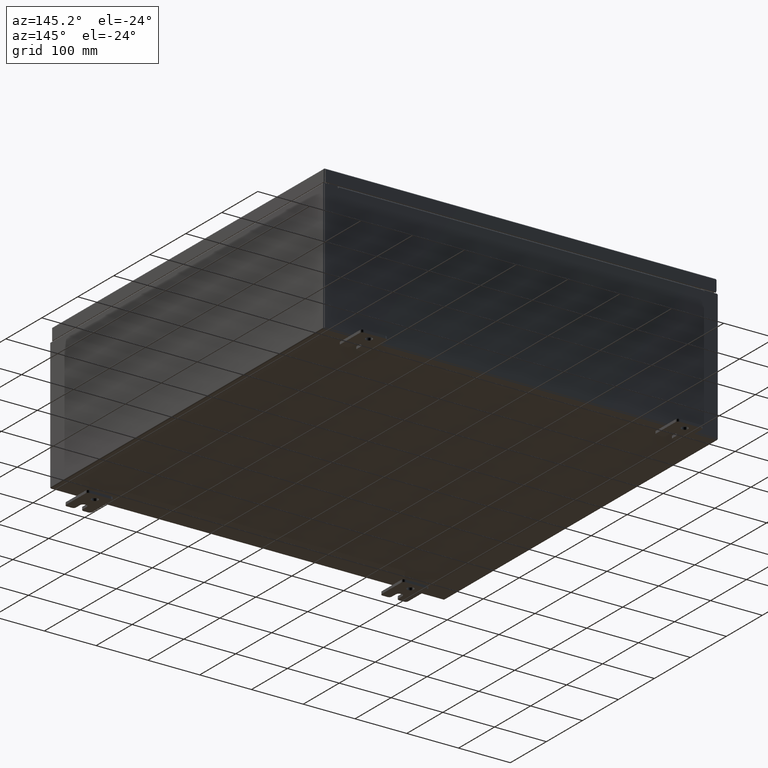
[diagram: clean part render]
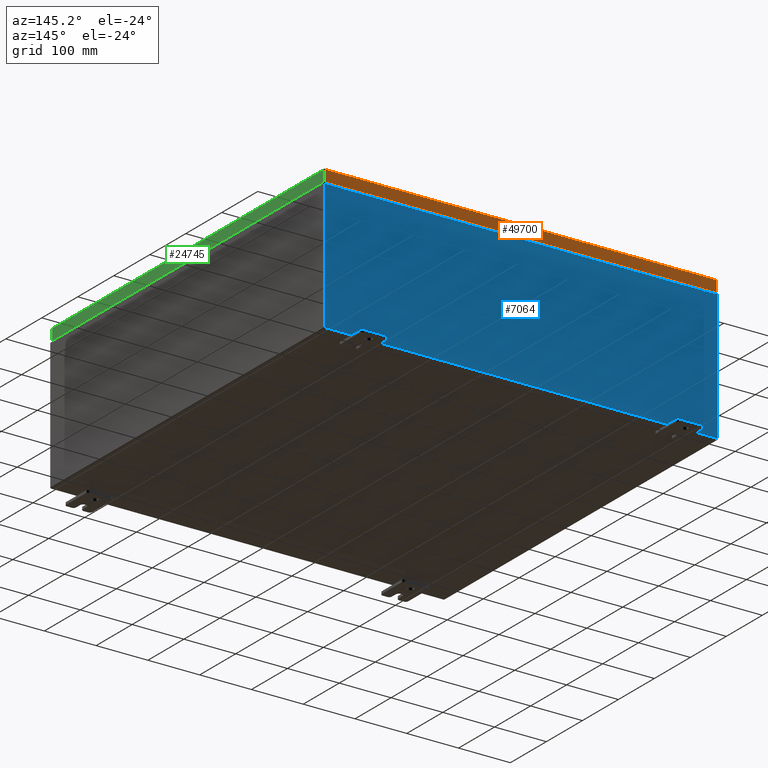
[diagram: same view with three faces highlighted in distinct colors, each labeled with its STEP entity id]
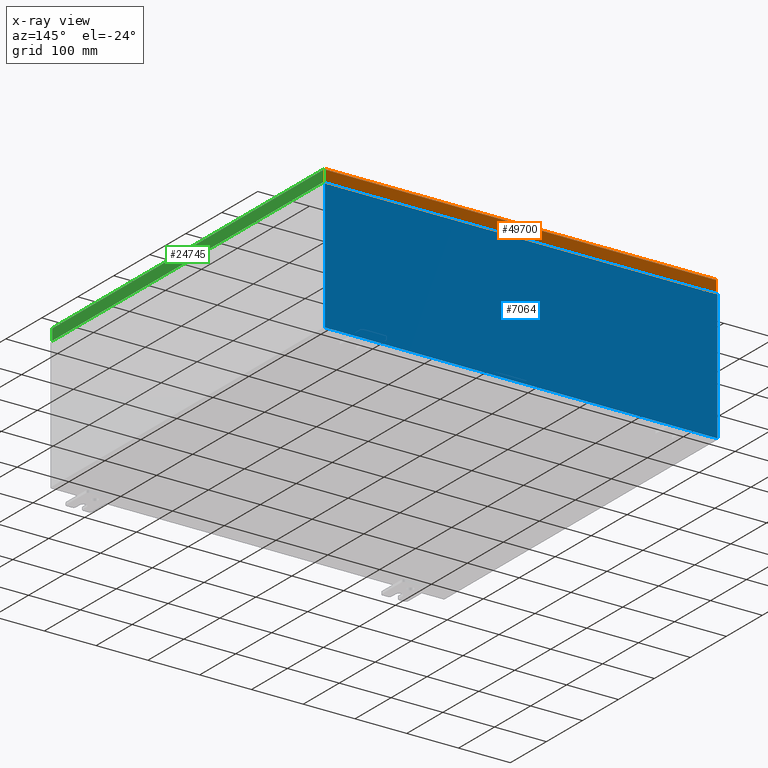
[diagram: x-ray of the same camera — body ghosted, the three highlighted faces saturated]
A machine part, auxiliary view with three faces highlighted in distinct colors.
The next image is the same camera in x-ray (body ghosted, the three faces saturated) — at least one of them is partly hidden behind the body in this view.
Their STEP definitions:

[orange] entity #49700 — the highlighted planar face has unit normal (0, -1, -0).
#208 = EDGE_CURVE ( 'NONE', #12716, #25888, #42334, .T. ) ;
#463 = AXIS2_PLACEMENT_3D ( 'NONE', #16698, #51987, #21794 ) ;
#761 = VECTOR ( 'NONE', #1387, 39.37007874015748100 ) ;
#1387 = DIRECTION ( 'NONE',  ( -0.0000000000000000000, 2.532419924601855400E-015, -1.000000000000000000 ) ) ;
#3741 = ORIENTED_EDGE ( 'NONE', *, *, #27728, .F. ) ;
#4267 = ORIENTED_EDGE ( 'NONE', *, *, #26473, .T. ) ;
#4361 = VERTEX_POINT ( 'NONE', #30037 ) ;
#7372 = VECTOR ( 'NONE', #37001, 39.37007874015748100 ) ;
#12716 = VERTEX_POINT ( 'NONE', #33637 ) ;
#15035 = FACE_OUTER_BOUND ( 'NONE', #57109, .T. ) ;
#16698 = CARTESIAN_POINT ( 'NONE',  ( -4.669775745843815100E-030, 14.93750000000000000, 3.808883627975179900E-014 ) ) ;
#20954 = CARTESIAN_POINT ( 'NONE',  ( -14.84865786437626400, 14.93750000000000000, -0.08770000000000118000 ) ) ;
#21794 = DIRECTION ( 'NONE',  ( 0.0000000000000000000, 2.532419924601855400E-015, -1.000000000000000000 ) ) ;
#22320 = LINE ( 'NONE', #40192, #32559 ) ;
#25888 = VERTEX_POINT ( 'NONE', #20954 ) ;
#26473 = EDGE_CURVE ( 'NONE', #12716, #4361, #22320, .T. ) ;
#26713 = CARTESIAN_POINT ( 'NONE',  ( -14.84865786437626800, 14.93750000000000000, -0.07469999999999980800 ) ) ;
#27728 = EDGE_CURVE ( 'NONE', #25888, #49932, #53003, .T. ) ;
#30037 = CARTESIAN_POINT ( 'NONE',  ( 14.84865786437626400, 14.93750000000000200, -0.9376999999999997600 ) ) ;
#32559 = VECTOR ( 'NONE', #45281, 39.37007874015748100 ) ;
#33637 = CARTESIAN_POINT ( 'NONE',  ( 14.84865786437626400, 14.93750000000000000, -0.08770000000000226200 ) ) ;
#36962 = EDGE_CURVE ( 'NONE', #49932, #4361, #47762, .T. ) ;
#37001 = DIRECTION ( 'NONE',  ( 1.000000000000000000, -4.379057701015054300E-047, 1.234475243998914400E-016 ) ) ;
#37442 = DIRECTION ( 'NONE',  ( -1.000000000000000000, -4.978778418007973200E-031, 7.315408853326900200E-017 ) ) ;
#40192 = CARTESIAN_POINT ( 'NONE',  ( 14.84865786437626800, 14.93750000000000000, 3.808883627975179900E-014 ) ) ;
#40872 = ORIENTED_EDGE ( 'NONE', *, *, #208, .F. ) ;
#42334 = LINE ( 'NONE', #49081, #54203 ) ;
#45281 = DIRECTION ( 'NONE',  ( 0.0000000000000000000, 2.532419924601855400E-015, -1.000000000000000000 ) ) ;
#47762 = LINE ( 'NONE', #57090, #7372 ) ;
#48653 = CARTESIAN_POINT ( 'NONE',  ( -14.84865786437626800, 14.93750000000000200, -0.9377000000000035300 ) ) ;
#49081 = CARTESIAN_POINT ( 'NONE',  ( -14.93749999999999800, 14.93750000000000000, -0.08770000000000008300 ) ) ;
#49700 = ADVANCED_FACE ( 'NONE', ( #15035 ), #62005, .F. ) ;
#49932 = VERTEX_POINT ( 'NONE', #48653 ) ;
#51987 = DIRECTION ( 'NONE',  ( 3.126209704330587400E-031, -1.000000000000000000, -2.532419924601855400E-015 ) ) ;
#53003 = LINE ( 'NONE', #26713, #761 ) ;
#54203 = VECTOR ( 'NONE', #37442, 39.37007874015748100 ) ;
#57090 = CARTESIAN_POINT ( 'NONE',  ( -14.93749999999999800, 14.93750000000000200, -0.9377000000000035300 ) ) ;
#57109 = EDGE_LOOP ( 'NONE', ( #40872, #4267, #58375, #3741 ) ) ;
#58375 = ORIENTED_EDGE ( 'NONE', *, *, #36962, .F. ) ;
#62005 = PLANE ( 'NONE',  #463 ) ;

[blue] entity #7064 — the highlighted planar face has unit normal (0, -1, 0).
#926 = AXIS2_PLACEMENT_3D ( 'NONE', #43772, #44414, #58604 ) ;
#1236 = CARTESIAN_POINT ( 'NONE',  ( -13.92455000000000500, -0.0000000000000000000, 0.0000000000000000000 ) ) ;
#1318 = ORIENTED_EDGE ( 'NONE', *, *, #27133, .F. ) ;
#1433 = DIRECTION ( 'NONE',  ( -0.0000000000000000000, -0.0000000000000000000, 1.000000000000000000 ) ) ;
#1917 = CARTESIAN_POINT ( 'NONE',  ( -13.92455000000000500, 0.0000000000000000000, 4.874950000000000100 ) ) ;
#2663 = VERTEX_POINT ( 'NONE', #37124 ) ;
#2790 = VERTEX_POINT ( 'NONE', #1917 ) ;
#3038 = DIRECTION ( 'NONE',  ( 1.000000000000000000, 0.0000000000000000000, 0.0000000000000000000 ) ) ;
#3075 = LINE ( 'NONE', #10342, #45041 ) ;
#5074 = LINE ( 'NONE', #43296, #43858 ) ;
#5311 = ORIENTED_EDGE ( 'NONE', *, *, #57287, .T. ) ;
#5557 = VERTEX_POINT ( 'NONE', #47010 ) ;
#6523 = LINE ( 'NONE', #21244, #57188 ) ;
#7064 = ADVANCED_FACE ( 'NONE', ( #34922 ), #61383, .F. ) ;
#7181 = CARTESIAN_POINT ( 'NONE',  ( -13.90587500000000500, 0.0000000000000000000, 4.874950000000000100 ) ) ;
#7747 = VERTEX_POINT ( 'NONE', #23788 ) ;
#9127 = EDGE_CURVE ( 'NONE', #5557, #7747, #3075, .T. ) ;
#10342 = CARTESIAN_POINT ( 'NONE',  ( -14.92530000000000200, 0.0000000000000000000, -4.925300000000000000 ) ) ;
#10652 = DIRECTION ( 'NONE',  ( -0.0000000000000000000, 1.000000000000000000, -0.0000000000000000000 ) ) ;
#10851 = CARTESIAN_POINT ( 'NONE',  ( 14.92529999999999800, 0.0000000000000000000, 4.925300000000000000 ) ) ;
#11417 = CIRCLE ( 'NONE', #15847, 0.01867499999999949400 ) ;
#12311 = DIRECTION ( 'NONE',  ( 0.0000000000000000000, 0.0000000000000000000, -1.000000000000000000 ) ) ;
#13652 = CARTESIAN_POINT ( 'NONE',  ( 13.88720000000000200, 0.0000000000000000000, 4.874950000000000100 ) ) ;
#14054 = ORIENTED_EDGE ( 'NONE', *, *, #64087, .T. ) ;
#14793 = VECTOR ( 'NONE', #19295, 39.37007874015748100 ) ;
#14887 = ORIENTED_EDGE ( 'NONE', *, *, #33691, .T. ) ;
#15847 = AXIS2_PLACEMENT_3D ( 'NONE', #40913, #10652, #46007 ) ;
#17089 = VERTEX_POINT ( 'NONE', #25450 ) ;
#18872 = EDGE_CURVE ( 'NONE', #33069, #2790, #20722, .T. ) ;
#19295 = DIRECTION ( 'NONE',  ( 1.000000000000000000, 0.0000000000000000000, 0.0000000000000000000 ) ) ;
#20722 = CIRCLE ( 'NONE', #47938, 0.01867499999999949400 ) ;
#21244 = CARTESIAN_POINT ( 'NONE',  ( 13.92454999999978900, -0.0000000000000000000, -6.044052270931796500E-013 ) ) ;
#23326 = VECTOR ( 'NONE', #45808, 39.37007874015748100 ) ;
#23630 = CARTESIAN_POINT ( 'NONE',  ( -13.88720000000000500, -7.171100983368691200E-016, 4.912300000000000100 ) ) ;
#23788 = CARTESIAN_POINT ( 'NONE',  ( -14.92530000000000200, 0.0000000000000000000, -4.925300000000000000 ) ) ;
#24494 = CARTESIAN_POINT ( 'NONE',  ( -13.88720000000000500, -0.0000000000000000000, 0.0000000000000000000 ) ) ;
#25233 = ORIENTED_EDGE ( 'NONE', *, *, #9127, .T. ) ;
#25450 = CARTESIAN_POINT ( 'NONE',  ( 13.92455000000000400, 0.0000000000000000000, 4.925300000000000000 ) ) ;
#27133 = EDGE_CURVE ( 'NONE', #59810, #33069, #28573, .T. ) ;
#28408 = LINE ( 'NONE', #29571, #65568 ) ;
#28573 = LINE ( 'NONE', #24494, #41922 ) ;
#29571 = CARTESIAN_POINT ( 'NONE',  ( 13.88720000000000200, 0.0000000000000000000, 0.0000000000000000000 ) ) ;
#29711 = EDGE_CURVE ( 'NONE', #2790, #36829, #36289, .T. ) ;
#30047 = EDGE_CURVE ( 'NONE', #48237, #2663, #28408, .T. ) ;
#31084 = CARTESIAN_POINT ( 'NONE',  ( -13.92455000000000500, 0.0000000000000000000, 4.925300000000000000 ) ) ;
#31607 = DIRECTION ( 'NONE',  ( 0.0000000000000000000, 0.0000000000000000000, 1.000000000000000000 ) ) ;
#32560 = CARTESIAN_POINT ( 'NONE',  ( 13.92455000000000000, 0.0000000000000000000, 4.874950000000000100 ) ) ;
#32918 = DIRECTION ( 'NONE',  ( 1.000000000000000000, 0.0000000000000000000, 0.0000000000000000000 ) ) ;
#33069 = VERTEX_POINT ( 'NONE', #65332 ) ;
#33691 = EDGE_CURVE ( 'NONE', #64017, #36829, #53522, .T. ) ;
#33982 = DIRECTION ( 'NONE',  ( 0.0000000000000000000, 0.0000000000000000000, 1.000000000000000000 ) ) ;
#34537 = CARTESIAN_POINT ( 'NONE',  ( -14.92530000000000200, 0.0000000000000000000, 4.925300000000000000 ) ) ;
#34922 = FACE_OUTER_BOUND ( 'NONE', #50065, .T. ) ;
#36111 = CARTESIAN_POINT ( 'NONE',  ( 14.92529999999999800, 0.0000000000000000000, 4.925300000000000000 ) ) ;
#36289 = LINE ( 'NONE', #1236, #49688 ) ;
#36829 = VERTEX_POINT ( 'NONE', #31084 ) ;
#37124 = CARTESIAN_POINT ( 'NONE',  ( 13.88720000000000200, 0.0000000000000000000, 4.912300000000000100 ) ) ;
#37737 = ORIENTED_EDGE ( 'NONE', *, *, #44391, .F. ) ;
#38442 = ORIENTED_EDGE ( 'NONE', *, *, #29711, .F. ) ;
#39154 = VERTEX_POINT ( 'NONE', #10851 ) ;
#39166 = ORIENTED_EDGE ( 'NONE', *, *, #18872, .F. ) ;
#40511 = CARTESIAN_POINT ( 'NONE',  ( -14.92530000000000200, 0.0000000000000000000, 4.925300000000000000 ) ) ;
#40913 = CARTESIAN_POINT ( 'NONE',  ( 13.90587500000000200, 0.0000000000000000000, 4.874950000000000100 ) ) ;
#41922 = VECTOR ( 'NONE', #54686, 39.37007874015748100 ) ;
#42429 = EDGE_CURVE ( 'NONE', #59810, #2663, #5074, .T. ) ;
#42570 = DIRECTION ( 'NONE',  ( -0.0000000000000000000, 1.000000000000000000, -0.0000000000000000000 ) ) ;
#43296 = CARTESIAN_POINT ( 'NONE',  ( -13.88720000000000500, -7.171100983368691200E-016, 4.912300000000000100 ) ) ;
#43772 = CARTESIAN_POINT ( 'NONE',  ( 0.0000000000000000000, 0.0000000000000000000, 0.0000000000000000000 ) ) ;
#43858 = VECTOR ( 'NONE', #3038, 39.37007874015748100 ) ;
#44391 = EDGE_CURVE ( 'NONE', #17089, #64339, #6523, .T. ) ;
#44414 = DIRECTION ( 'NONE',  ( 0.0000000000000000000, -1.000000000000000000, 0.0000000000000000000 ) ) ;
#45041 = VECTOR ( 'NONE', #65680, 39.37007874015748100 ) ;
#45808 = DIRECTION ( 'NONE',  ( 0.0000000000000000000, 0.0000000000000000000, -1.000000000000000000 ) ) ;
#45817 = VECTOR ( 'NONE', #1433, 39.37007874015748100 ) ;
#46007 = DIRECTION ( 'NONE',  ( 0.0000000000000000000, 0.0000000000000000000, -1.000000000000000000 ) ) ;
#47010 = CARTESIAN_POINT ( 'NONE',  ( 14.92529999999999800, 0.0000000000000000000, -4.925300000000000000 ) ) ;
#47938 = AXIS2_PLACEMENT_3D ( 'NONE', #7181, #42570, #12311 ) ;
#48045 = LINE ( 'NONE', #63185, #63115 ) ;
#48237 = VERTEX_POINT ( 'NONE', #13652 ) ;
#49688 = VECTOR ( 'NONE', #31607, 39.37007874015748100 ) ;
#50065 = EDGE_LOOP ( 'NONE', ( #38442, #39166, #1318, #50393, #59845, #60628, #37737, #63113, #14054, #25233, #5311, #14887 ) ) ;
#50393 = ORIENTED_EDGE ( 'NONE', *, *, #42429, .T. ) ;
#51157 = EDGE_CURVE ( 'NONE', #64339, #48237, #11417, .T. ) ;
#51860 = CARTESIAN_POINT ( 'NONE',  ( -14.92530000000000200, 0.0000000000000000000, 4.925300000000000000 ) ) ;
#53522 = LINE ( 'NONE', #34537, #14793 ) ;
#54686 = DIRECTION ( 'NONE',  ( 0.0000000000000000000, 0.0000000000000000000, -1.000000000000000000 ) ) ;
#57188 = VECTOR ( 'NONE', #61449, 39.37007874015748100 ) ;
#57287 = EDGE_CURVE ( 'NONE', #7747, #64017, #60871, .T. ) ;
#58604 = DIRECTION ( 'NONE',  ( 0.0000000000000000000, -0.0000000000000000000, -1.000000000000000000 ) ) ;
#59676 = EDGE_CURVE ( 'NONE', #17089, #39154, #48045, .T. ) ;
#59810 = VERTEX_POINT ( 'NONE', #23630 ) ;
#59845 = ORIENTED_EDGE ( 'NONE', *, *, #30047, .F. ) ;
#60628 = ORIENTED_EDGE ( 'NONE', *, *, #51157, .F. ) ;
#60871 = LINE ( 'NONE', #51860, #45817 ) ;
#61383 = PLANE ( 'NONE',  #926 ) ;
#61449 = DIRECTION ( 'NONE',  ( -4.340572780400004900E-014, 0.0000000000000000000, -1.000000000000000000 ) ) ;
#63113 = ORIENTED_EDGE ( 'NONE', *, *, #59676, .T. ) ;
#63115 = VECTOR ( 'NONE', #32918, 39.37007874015748100 ) ;
#63185 = CARTESIAN_POINT ( 'NONE',  ( -14.92530000000000200, 0.0000000000000000000, 4.925300000000000000 ) ) ;
#63649 = LINE ( 'NONE', #36111, #23326 ) ;
#64017 = VERTEX_POINT ( 'NONE', #40511 ) ;
#64087 = EDGE_CURVE ( 'NONE', #39154, #5557, #63649, .T. ) ;
#64339 = VERTEX_POINT ( 'NONE', #32560 ) ;
#65332 = CARTESIAN_POINT ( 'NONE',  ( -13.88720000000000500, -0.0000000000000000000, 4.874950000000000100 ) ) ;
#65568 = VECTOR ( 'NONE', #33982, 39.37007874015748100 ) ;
#65680 = DIRECTION ( 'NONE',  ( -1.000000000000000000, -0.0000000000000000000, -0.0000000000000000000 ) ) ;

[green] entity #24745 — the highlighted planar face has unit normal (1, 0, 0).
#4093 = EDGE_LOOP ( 'NONE', ( #46847, #4787, #42244, #59454 ) ) ;
#4787 = ORIENTED_EDGE ( 'NONE', *, *, #14196, .F. ) ;
#6801 = CARTESIAN_POINT ( 'NONE',  ( 14.93749999999999800, 0.0000000000000000000, -0.08770000000000008300 ) ) ;
#8065 = DIRECTION ( 'NONE',  ( 2.532419924601866100E-015, 0.0000000000000000000, -1.000000000000000000 ) ) ;
#10558 = LINE ( 'NONE', #31180, #35906 ) ;
#11621 = VECTOR ( 'NONE', #61135, 39.37007874015748100 ) ;
#12165 = CARTESIAN_POINT ( 'NONE',  ( 14.93750000000000000, 14.84865786437627300, -0.9376999999999997600 ) ) ;
#12781 = PLANE ( 'NONE',  #32998 ) ;
#14196 = EDGE_CURVE ( 'NONE', #37979, #41296, #43080, .T. ) ;
#15790 = EDGE_CURVE ( 'NONE', #37979, #59392, #10558, .T. ) ;
#20547 = EDGE_CURVE ( 'NONE', #59392, #58091, #27850, .T. ) ;
#24745 = ADVANCED_FACE ( 'NONE', ( #62762 ), #12781, .T. ) ;
#25829 = CARTESIAN_POINT ( 'NONE',  ( 14.93749999999999800, -14.84865786437626800, -0.07469999999999980800 ) ) ;
#26556 = CARTESIAN_POINT ( 'NONE',  ( 14.93749999999999800, 14.84865786437626800, -0.08770000000000008300 ) ) ;
#27850 = LINE ( 'NONE', #6801, #39617 ) ;
#28327 = CARTESIAN_POINT ( 'NONE',  ( 14.93749999999999800, 0.0000000000000000000, 3.808883627975194400E-014 ) ) ;
#31180 = CARTESIAN_POINT ( 'NONE',  ( 14.93749999999999800, 14.84865786437626900, 1.417764599604241100E-013 ) ) ;
#31302 = VECTOR ( 'NONE', #58785, 39.37007874015748100 ) ;
#32998 = AXIS2_PLACEMENT_3D ( 'NONE', #28327, #38455, #8065 ) ;
#35906 = VECTOR ( 'NONE', #36231, 39.37007874015748100 ) ;
#36231 = DIRECTION ( 'NONE',  ( -2.532419924601866100E-015, -6.982962677686265900E-015, 1.000000000000000000 ) ) ;
#37979 = VERTEX_POINT ( 'NONE', #12165 ) ;
#38455 = DIRECTION ( 'NONE',  ( 1.000000000000000000, 0.0000000000000000000, 2.532419924601866100E-015 ) ) ;
#39465 = CARTESIAN_POINT ( 'NONE',  ( 14.93750000000000000, -14.84865786437626100, -0.9376999999999997600 ) ) ;
#39617 = VECTOR ( 'NONE', #57256, 39.37007874015748100 ) ;
#41296 = VERTEX_POINT ( 'NONE', #39465 ) ;
#42244 = ORIENTED_EDGE ( 'NONE', *, *, #15790, .T. ) ;
#43080 = LINE ( 'NONE', #53903, #31302 ) ;
#46847 = ORIENTED_EDGE ( 'NONE', *, *, #60072, .F. ) ;
#50394 = LINE ( 'NONE', #25829, #11621 ) ;
#53903 = CARTESIAN_POINT ( 'NONE',  ( 14.93750000000000000, -14.93749999999999800, -0.9376999999999997600 ) ) ;
#57256 = DIRECTION ( 'NONE',  ( 0.0000000000000000000, -1.000000000000000000, 0.0000000000000000000 ) ) ;
#58091 = VERTEX_POINT ( 'NONE', #62232 ) ;
#58785 = DIRECTION ( 'NONE',  ( 0.0000000000000000000, -1.000000000000000000, 0.0000000000000000000 ) ) ;
#59392 = VERTEX_POINT ( 'NONE', #26556 ) ;
#59454 = ORIENTED_EDGE ( 'NONE', *, *, #20547, .T. ) ;
#60072 = EDGE_CURVE ( 'NONE', #41296, #58091, #50394, .T. ) ;
#61135 = DIRECTION ( 'NONE',  ( -2.532419924601866100E-015, -6.982962677686265900E-015, 1.000000000000000000 ) ) ;
#62232 = CARTESIAN_POINT ( 'NONE',  ( 14.93749999999999800, -14.84865786437626800, -0.08770000000000008300 ) ) ;
#62762 = FACE_OUTER_BOUND ( 'NONE', #4093, .T. ) ;